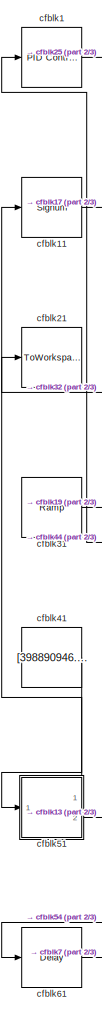
[diagram: root canvas - part 1/3, left side, full height]
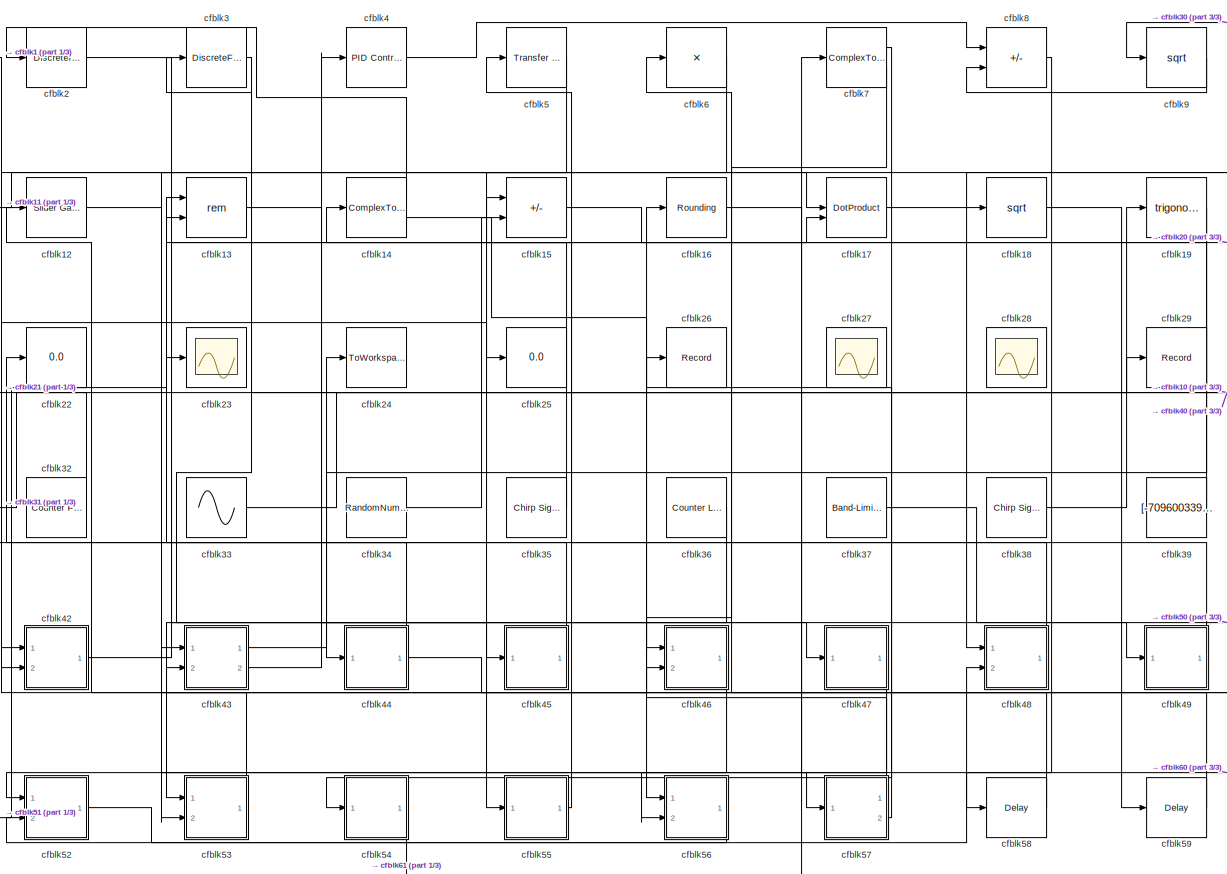
[diagram: root canvas - part 2/3, most of the canvas]
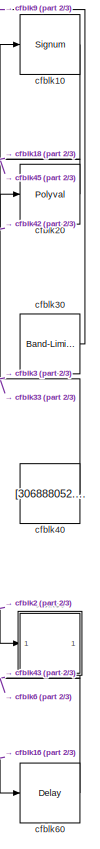
[diagram: root canvas - part 3/3, right side, full height]
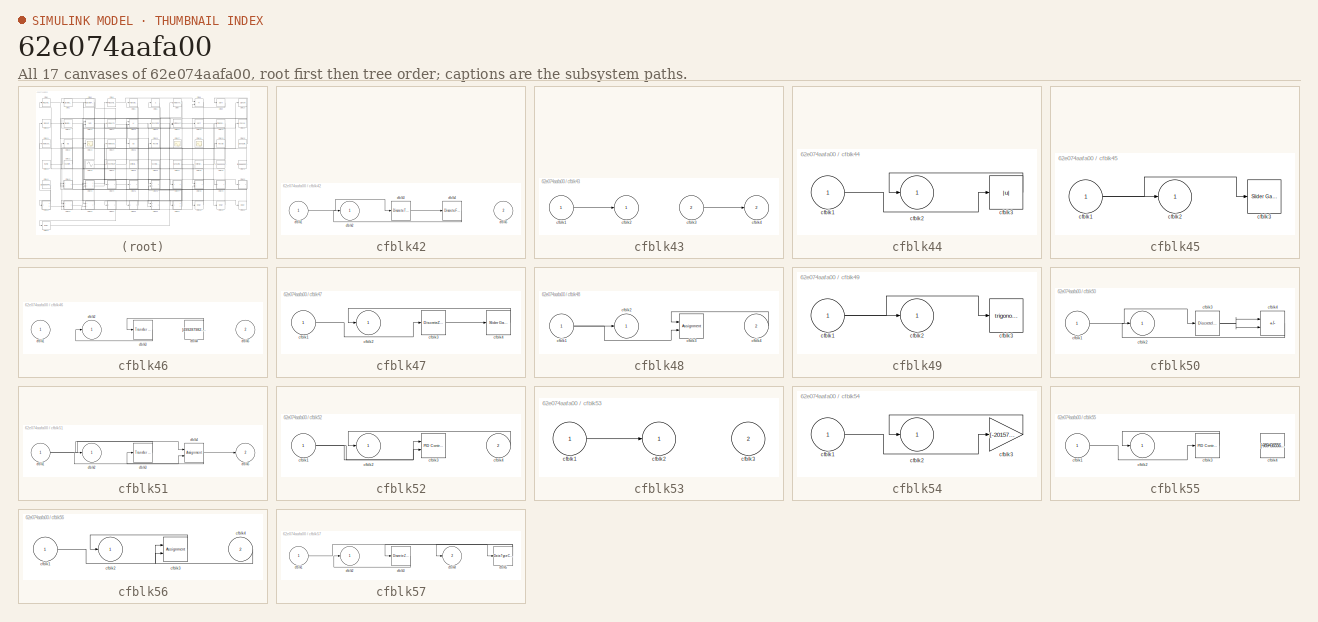
[diagram: thumbnail index - all 17 canvases of the model, root first then tree order]
MODEL slx_62e074aafa00
KIND model
CONFIG AbsTol = auto
CONFIG EnableMultiTasking = off
CONFIG FixedStep = auto
CONFIG MaxStep = auto
CONFIG MinStep = auto
CONFIG RelTol = 1e-3
CONFIG SampleTimeConstraint = Unconstrained
CONFIG SolverName = VariableStepAuto
CONFIG StartTime = 0.0
CONFIG StopTime = 10.0
BLOCK [Reference] cfblk1  REF=slpidlib/PID Controller
  Ports = [1, 1]
  SourceBlock = slpidlib/PID Controller
  SourceProductBaseCode = SL
  SourceType = PID 1dof
BLOCK [Signum] cfblk10
BLOCK [Signum] cfblk11
BLOCK [Reference] cfblk12  REF=simulink/Math
Operations/Slider
Gain
  Ports = [1, 1]
  SourceBlock = simulink/Math\nOperations/Slider\nGain
  SourceProductBaseCode = SL
  SourceType = Slider Gain
BLOCK [Math] cfblk13
  Operator = rem
  Ports = [2, 1]
BLOCK [ComplexToRealImag] cfblk14
  Ports = [1, 2]
BLOCK [Sum] cfblk15
  IconShape = rectangular
  Inputs = +-
  Ports = [2, 1]
BLOCK [Rounding] cfblk16
BLOCK [DotProduct] cfblk17
  OutDataTypeStr = Inherit: Inherit via internal rule
BLOCK [Sqrt] cfblk18
BLOCK [Trigonometry] cfblk19
  Ports = [1, 1]
BLOCK [DiscreteIntegrator] cfblk2
  ICPrevOutput = DiscIntNeverNeededParam
  ICPrevScaledInput = DiscIntNeverNeededParam
  InitialConditionSetting = Auto
  Ports = [1, 1]
BLOCK [Polyval] cfblk20
  Coefs = [ +2.081618890e-019, -1.441693666e-014, +4.719686976e-010, -8.536869453e-006, +1.621573104e-001, -8.087801117e+001 ]
BLOCK [ToWorkspace] cfblk21
  FixptAsFi = on
  MaxDataPoints = inf
  Ports = [1]
  SampleTime = -1
  SaveFormat = Timeseries
  VariableName = totmvkw
BLOCK [Display] cfblk22
  Decimation = 1
  Ports = [1]
BLOCK [Scope] cfblk23
  Floating = off
  NumInputPorts = 1
  Ports = [1]
BLOCK [ToWorkspace] cfblk24
  FixptAsFi = on
  MaxDataPoints = inf
  Ports = [1]
  SampleTime = -1
  SaveFormat = Timeseries
  VariableName = niymegp
BLOCK [Display] cfblk25
  Decimation = 1
  Ports = [1]
BLOCK [Record] cfblk26
  FileSettingsInternal = {"entries":[{"content":{"excelSettings":{"content":{},"type":"Streamout.ExcelSettings"}},"type":"Streamout.FileSettingStorage","uuid":"fce3c9d6-2a43-49ad-97cb-480ba1ea60d3"}],"packageUris":["http://schema.mathworks.com/mf0/streamout_blocks/R2020a"],"version":"1.0"}
  Ports = [1]
  SignalsInternal = {"entries":[{"content":{"signals":[{"content":{"blockPath":["sampleModel285/cfblk26"],"channel":[],"dimensions":[1],"domain":"sampleModel285/cfblk26","lineColor":"#64d413","plots":[1],"port":1,"sid":[""],"signalID":12153,"signalName":"cfblk57:2"},"type":"RecordBlkView.Signal","uuid":"ef2de107-a73d-422a-8208-4576102479dd"}]},"type":"RecordBlkView.InputSignals","uuid":"a1f22ca5-0b50-4f29-a623-51cfa5...<+100ch>
  VisualizationBindings = {"sparklinesplugin":{"info":[{"bindingParametersList":[],"subplotID":1}]}}
BLOCK [Scope] cfblk27
  Floating = on
  NumInputPorts = 1
  Ports = []
BLOCK [Scope] cfblk28
  Floating = on
  NumInputPorts = 1
  Ports = []
BLOCK [Record] cfblk29
  FileSettingsInternal = {"entries":[{"content":{"excelSettings":{"content":{},"type":"Streamout.ExcelSettings"}},"type":"Streamout.FileSettingStorage","uuid":"8842c590-fe67-47e1-96e0-aaea28d16c5b"}],"packageUris":["http://schema.mathworks.com/mf0/streamout_blocks/R2020a"],"version":"1.0"}
  Ports = [1]
  SignalsInternal = {"entries":[{"content":{"signals":[{"content":{"blockPath":["sampleModel285/cfblk29"],"channel":[],"dimensions":[1],"domain":"sampleModel285/cfblk29","lineColor":"#ff13a6","plots":[1],"port":1,"sid":[""],"signalID":12157,"signalName":"cfblk38"},"type":"RecordBlkView.Signal","uuid":"8326beb5-a610-4d92-bc52-2f1e85b59b34"}]},"type":"RecordBlkView.InputSignals","uuid":"b6eabaa5-5595-4eb1-8b25-66d350a1...<+98ch>
  VisualizationBindings = {"sparklinesplugin":{"info":[{"bindingParametersList":[],"subplotID":1}]}}
BLOCK [DiscreteFilter] cfblk3
  InputPortMap = u0
  Ports = [1, 1]
  SampleTime = 1
BLOCK [Reference] cfblk30  REF=simulink/Sources/Band-Limited
White Noise
  Ports = [0, 1]
  SourceBlock = simulink/Sources/Band-Limited\nWhite Noise
  SourceProductBaseCode = SL
  SourceType = Band-Limited White Noise.
BLOCK [Reference] cfblk31  REF=simulink/Sources/Ramp
  Ports = [0, 1]
  SourceBlock = simulink/Sources/Ramp
  SourceProductBaseCode = SL
  SourceType = Ramp
BLOCK [Reference] cfblk32  REF=simulink/Sources/Counter
Free-Running
  Ports = [0, 1]
  SourceBlock = simulink/Sources/Counter\nFree-Running
  SourceProductBaseCode = SL
  SourceType = Counter Free-Running
BLOCK [Sin] cfblk33
  Amplitude = [198590762.873627]
  Bias = [78341371.949165]
  Ports = [0, 1]
  SampleTime = 0
BLOCK [RandomNumber] cfblk34
  Mean = [-67437.100859]
  SampleTime = 0.1
  Seed = [528915036.000000]
  Variance = [32751.440933]
BLOCK [Reference] cfblk35  REF=simulink/Sources/Chirp Signal
  Ports = [0, 1]
  SourceBlock = simulink/Sources/Chirp Signal
  SourceProductBaseCode = SL
  SourceType = chirp
BLOCK [Reference] cfblk36  REF=simulink/Sources/Counter
Limited
  Ports = [0, 1]
  SourceBlock = simulink/Sources/Counter\nLimited
  SourceProductBaseCode = SL
  SourceType = Counter Limited
BLOCK [Reference] cfblk37  REF=simulink/Sources/Band-Limited
White Noise
  Ports = [0, 1]
  SourceBlock = simulink/Sources/Band-Limited\nWhite Noise
  SourceProductBaseCode = SL
  SourceType = Band-Limited White Noise.
BLOCK [Reference] cfblk38  REF=simulink/Sources/Chirp Signal
  Ports = [0, 1]
  SourceBlock = simulink/Sources/Chirp Signal
  SourceProductBaseCode = SL
  SourceType = chirp
BLOCK [Constant] cfblk39
  SampleTime = 1
  Value = [-709600339.373542]
BLOCK [Reference] cfblk4  REF=slpidlib/PID Controller
  Ports = [1, 1]
  SourceBlock = slpidlib/PID Controller
  SourceProductBaseCode = SL
  SourceType = PID 1dof
BLOCK [Constant] cfblk40
  SampleTime = 1
  Value = [306888052.460813]
BLOCK [Constant] cfblk41
  SampleTime = 1
  Value = [398890946.852971]
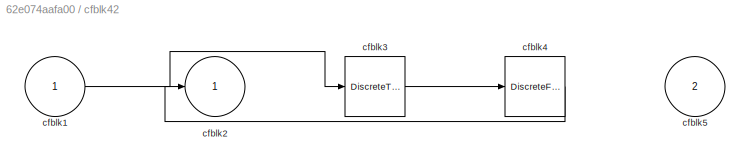
BLOCK [SubSystem] cfblk42
  Ports = [2, 1]
  RequestExecContextInheritance = off
BLOCK [Inport] cfblk42/cfblk1
BLOCK [Outport] cfblk42/cfblk2
BLOCK [DiscreteTransferFcn] cfblk42/cfblk3
  InputPortMap = u0
  Ports = [1, 1]
  SampleTime = 1
BLOCK [DiscreteFilter] cfblk42/cfblk4
  InputPortMap = u0
  Ports = [1, 1]
  SampleTime = 1
BLOCK [Inport] cfblk42/cfblk5
  Port = 2
BLOCK [SubSystem] cfblk43
  Ports = [2, 2]
  RequestExecContextInheritance = off
BLOCK [Inport] cfblk43/cfblk1
BLOCK [Outport] cfblk43/cfblk2
BLOCK [Inport] cfblk43/cfblk3
  Port = 2
BLOCK [Outport] cfblk43/cfblk4
  Port = 2
BLOCK [SubSystem] cfblk44
  Ports = [1, 1]
  RequestExecContextInheritance = off
BLOCK [Inport] cfblk44/cfblk1
BLOCK [Outport] cfblk44/cfblk2
BLOCK [Abs] cfblk44/cfblk3
  SaturateOnIntegerOverflow = off
BLOCK [SubSystem] cfblk45
  Ports = [1, 1]
  RequestExecContextInheritance = off
BLOCK [Inport] cfblk45/cfblk1
BLOCK [Outport] cfblk45/cfblk2
BLOCK [Reference] cfblk45/cfblk3  REF=simulink/Math
Operations/Slider
Gain
  Ports = [1, 1]
  SourceBlock = simulink/Math\nOperations/Slider\nGain
  SourceProductBaseCode = SL
  SourceType = Slider Gain
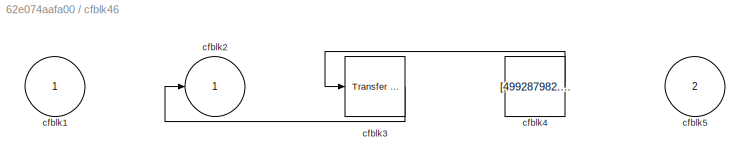
BLOCK [SubSystem] cfblk46
  Ports = [2, 1]
  RequestExecContextInheritance = off
BLOCK [Inport] cfblk46/cfblk1
BLOCK [Outport] cfblk46/cfblk2
BLOCK [Reference] cfblk46/cfblk3  REF=simulink/Discrete/Transfer Fcn
Real Zero
  Ports = [1, 1]
  SourceBlock = simulink/Discrete/Transfer Fcn\nReal Zero
  SourceProductBaseCode = SL
  SourceType = Transfer Fcn Real Zero
BLOCK [Constant] cfblk46/cfblk4
  SampleTime = 1
  Value = [499287982.056257]
BLOCK [Inport] cfblk46/cfblk5
  Port = 2
BLOCK [SubSystem] cfblk47
  Ports = [1, 1]
  RequestExecContextInheritance = off
BLOCK [Inport] cfblk47/cfblk1
BLOCK [Outport] cfblk47/cfblk2
BLOCK [DiscreteZeroPole] cfblk47/cfblk3
  Gain = 1
  Poles = [0 0.5]
BLOCK [Reference] cfblk47/cfblk4  REF=simulink/Math
Operations/Slider
Gain
  Ports = [1, 1]
  SourceBlock = simulink/Math\nOperations/Slider\nGain
  SourceProductBaseCode = SL
  SourceType = Slider Gain
BLOCK [SubSystem] cfblk48
  Ports = [2, 1]
  RequestExecContextInheritance = off
BLOCK [Inport] cfblk48/cfblk1
BLOCK [Outport] cfblk48/cfblk2
BLOCK [Assignment] cfblk48/cfblk3
  DiagnosticForDimensions = Warning
  IndexOptions = Index vector (dialog)
  Indices = 1
  OutputSizes = 1
  Ports = [2, 1]
BLOCK [Inport] cfblk48/cfblk4
  Port = 2
BLOCK [SubSystem] cfblk49
  Ports = [1, 1]
  RequestExecContextInheritance = off
BLOCK [Inport] cfblk49/cfblk1
BLOCK [Outport] cfblk49/cfblk2
BLOCK [Trigonometry] cfblk49/cfblk3
  Ports = [1, 1]
BLOCK [Reference] cfblk5  REF=simulink/Discrete/Transfer Fcn
Real Zero
  Ports = [1, 1]
  SourceBlock = simulink/Discrete/Transfer Fcn\nReal Zero
  SourceProductBaseCode = SL
  SourceType = Transfer Fcn Real Zero
BLOCK [SubSystem] cfblk50
  Ports = [1, 1]
  RequestExecContextInheritance = off
BLOCK [Inport] cfblk50/cfblk1
BLOCK [Outport] cfblk50/cfblk2
BLOCK [DiscreteIntegrator] cfblk50/cfblk3
  ICPrevOutput = DiscIntNeverNeededParam
  ICPrevScaledInput = DiscIntNeverNeededParam
  InitialConditionSetting = Auto
  Ports = [1, 1]
BLOCK [Sum] cfblk50/cfblk4
  IconShape = rectangular
  Inputs = --
  Ports = [2, 1]
BLOCK [SubSystem] cfblk51
  Ports = [1, 2]
  RequestExecContextInheritance = off
BLOCK [Inport] cfblk51/cfblk1
BLOCK [Outport] cfblk51/cfblk2
BLOCK [Reference] cfblk51/cfblk3  REF=simulink/Discrete/Transfer Fcn
Lead or Lag
  Ports = [1, 1]
  SourceBlock = simulink/Discrete/Transfer Fcn\nLead or Lag
  SourceProductBaseCode = SL
  SourceType = Lead or Lag Compensator
BLOCK [Assignment] cfblk51/cfblk4
  DiagnosticForDimensions = Warning
  IndexOptions = Index vector (dialog)
  Indices = 1
  OutputSizes = 1
  Ports = [2, 1]
BLOCK [Outport] cfblk51/cfblk5
  Port = 2
BLOCK [SubSystem] cfblk52
  Ports = [2, 1]
  RequestExecContextInheritance = off
BLOCK [Inport] cfblk52/cfblk1
BLOCK [Outport] cfblk52/cfblk2
BLOCK [Reference] cfblk52/cfblk3  REF=slpidlib/PID Controller (2DOF)
  Ports = [2, 1]
  SourceBlock = slpidlib/PID Controller (2DOF)
  SourceProductBaseCode = SL
  SourceType = PID 2dof
BLOCK [Inport] cfblk52/cfblk4
  Port = 2
BLOCK [SubSystem] cfblk53
  Ports = [2, 1]
  RequestExecContextInheritance = off
BLOCK [Inport] cfblk53/cfblk1
BLOCK [Outport] cfblk53/cfblk2
BLOCK [Inport] cfblk53/cfblk3
  Port = 2
BLOCK [SubSystem] cfblk54
  Ports = [1, 1]
  RequestExecContextInheritance = off
BLOCK [Inport] cfblk54/cfblk1
BLOCK [Outport] cfblk54/cfblk2
BLOCK [Gain] cfblk54/cfblk3
  Gain = [-201575047.570296]
BLOCK [SubSystem] cfblk55
  Ports = [1, 1]
  RequestExecContextInheritance = off
BLOCK [Inport] cfblk55/cfblk1
BLOCK [Outport] cfblk55/cfblk2
BLOCK [Reference] cfblk55/cfblk3  REF=slpidlib/PID Controller
  Ports = [1, 1]
  SourceBlock = slpidlib/PID Controller
  SourceProductBaseCode = SL
  SourceType = PID 1dof
BLOCK [Constant] cfblk55/cfblk4
  SampleTime = 1
  Value = [-989436556.663402]
BLOCK [SubSystem] cfblk56
  Ports = [2, 1]
  RequestExecContextInheritance = off
BLOCK [Inport] cfblk56/cfblk1
BLOCK [Outport] cfblk56/cfblk2
BLOCK [Assignment] cfblk56/cfblk3
  DiagnosticForDimensions = Warning
  IndexOptions = Index vector (dialog)
  Indices = 1
  OutputSizes = 1
  Ports = [2, 1]
BLOCK [Inport] cfblk56/cfblk4
  Port = 2
BLOCK [SubSystem] cfblk57
  Ports = [1, 2]
  RequestExecContextInheritance = off
BLOCK [Inport] cfblk57/cfblk1
BLOCK [Outport] cfblk57/cfblk2
BLOCK [DiscreteZeroPole] cfblk57/cfblk3
  Gain = 1
  Poles = [0 0.5]
BLOCK [Outport] cfblk57/cfblk4
  Port = 2
BLOCK [DataTypeConversion] cfblk57/cfblk5
  RndMeth = Floor
  SaturateOnIntegerOverflow = off
BLOCK [Delay] cfblk58
  InputPortMap = u0
  Ports = [1, 1]
  SampleTime = 1
BLOCK [Delay] cfblk59
  InputPortMap = u0
  Ports = [1, 1]
  SampleTime = 1
BLOCK [Product] cfblk6
  Inputs = *
  Ports = [1, 1]
BLOCK [Delay] cfblk60
  InputPortMap = u0
  Ports = [1, 1]
  SampleTime = 1
BLOCK [Delay] cfblk61
  InputPortMap = u0
  Ports = [1, 1]
  SampleTime = 1
BLOCK [ComplexToMagnitudeAngle] cfblk7
  Ports = [1, 2]
BLOCK [Sum] cfblk8
  IconShape = rectangular
  Inputs = +-
  Ports = [2, 1]
BLOCK [Sqrt] cfblk9
LINE cfblk10:1 -> cfblk45:1
LINE cfblk11:1 -> cfblk17:1
LINE cfblk12:1 -> cfblk57:1
LINE cfblk13:1 -> cfblk47:1
LINE cfblk14:1 -> cfblk2:1
LINE cfblk14:2 -> cfblk56:1
LINE cfblk15:1 -> cfblk17:2
LINE cfblk16:1 -> cfblk60:1
LINE cfblk17:1 -> cfblk48:1
LINE cfblk18:1 -> cfblk59:1
LINE cfblk19:1 -> cfblk44:1
LINE cfblk1:1 -> cfblk25:1
LINE cfblk20:1 -> cfblk18:1
LINE cfblk2:1 -> cfblk50:1
LINE cfblk30:1 -> cfblk9:1
LINE cfblk31:1 -> cfblk19:1
LINE cfblk32:1 -> cfblk21:1
LINE cfblk33:1 -> cfblk10:1
LINE cfblk34:1 -> cfblk15:2
LINE cfblk35:1 -> cfblk13:1
LINE cfblk36:1 -> cfblk53:1
LINE cfblk37:1 -> cfblk49:1
LINE cfblk38:1 -> cfblk29:1
LINE cfblk39:1 -> cfblk14:1
LINE cfblk3:1 -> cfblk55:1
LINE cfblk40:1 -> cfblk3:1
LINE cfblk41:1 -> cfblk51:1
LINE cfblk42/cfblk1:1 -> cfblk42/cfblk3:1
LINE cfblk42/cfblk3:1 -> cfblk42/cfblk4:1
LINE cfblk42/cfblk4:1 -> cfblk42/cfblk2:1
LINE cfblk42:1 -> cfblk20:1
LINE cfblk43/cfblk1:1 -> cfblk43/cfblk2:1
LINE cfblk43/cfblk3:1 -> cfblk43/cfblk4:1
LINE cfblk43:1 -> cfblk24:1
LINE cfblk43:2 -> cfblk4:1
LINE cfblk44/cfblk1:1 -> cfblk44/cfblk3:1
LINE cfblk44/cfblk3:1 -> cfblk44/cfblk2:1
NET cfblk44:1 -> cfblk1:1, cfblk46:2
NET cfblk45/cfblk1:1 -> cfblk45/cfblk2:1, cfblk45/cfblk3:1
LINE cfblk45:1 -> cfblk22:1
LINE cfblk46/cfblk3:1 -> cfblk46/cfblk2:1
LINE cfblk46/cfblk4:1 -> cfblk46/cfblk3:1
LINE cfblk46:1 -> cfblk52:1
LINE cfblk47/cfblk1:1 -> cfblk47/cfblk3:1
LINE cfblk47/cfblk3:1 -> cfblk47/cfblk4:1
LINE cfblk47/cfblk4:1 -> cfblk47/cfblk2:1
LINE cfblk47:1 -> cfblk56:2
NET cfblk48/cfblk1:1 -> cfblk48/cfblk2:1, cfblk48/cfblk3:2
LINE cfblk48/cfblk4:1 -> cfblk48/cfblk3:1
LINE cfblk48:1 -> cfblk23:1
NET cfblk49/cfblk1:1 -> cfblk49/cfblk2:1, cfblk49/cfblk3:1
LINE cfblk49:1 -> cfblk5:1
LINE cfblk4:1 -> cfblk8:1
LINE cfblk50/cfblk1:1 -> cfblk50/cfblk3:1
NET cfblk50/cfblk3:1 -> cfblk50/cfblk4:1, cfblk50/cfblk4:2
LINE cfblk50/cfblk4:1 -> cfblk50/cfblk2:1
LINE cfblk50:1 -> cfblk43:2
NET cfblk51/cfblk1:1 -> cfblk51/cfblk4:1, cfblk51/cfblk4:2
LINE cfblk51/cfblk3:1 -> cfblk51/cfblk2:1
NET cfblk51/cfblk4:1 -> cfblk51/cfblk3:1, cfblk51/cfblk5:1
LINE cfblk51:1 -> cfblk11:1
LINE cfblk51:2 -> cfblk13:2
NET cfblk52/cfblk1:1 -> cfblk52/cfblk3:1, cfblk52/cfblk3:2
LINE cfblk52/cfblk4:1 -> cfblk52/cfblk2:1
LINE cfblk52:1 -> cfblk48:2
LINE cfblk53/cfblk1:1 -> cfblk53/cfblk2:1
LINE cfblk53:1 -> cfblk12:1
LINE cfblk54/cfblk1:1 -> cfblk54/cfblk3:1
LINE cfblk54/cfblk3:1 -> cfblk54/cfblk2:1
LINE cfblk54:1 -> cfblk61:1
LINE cfblk55/cfblk1:1 -> cfblk55/cfblk3:1
LINE cfblk55/cfblk3:1 -> cfblk55/cfblk2:1
LINE cfblk55:1 -> cfblk15:1
LINE cfblk56/cfblk1:1 -> cfblk56/cfblk3:1
LINE cfblk56/cfblk3:1 -> cfblk56/cfblk2:1
LINE cfblk56/cfblk4:1 -> cfblk56/cfblk3:2
LINE cfblk56:1 -> cfblk52:2
LINE cfblk57/cfblk1:1 -> cfblk57/cfblk5:1
LINE cfblk57/cfblk3:1 -> cfblk57/cfblk2:1
NET cfblk57/cfblk5:1 -> cfblk57/cfblk3:1, cfblk57/cfblk4:1
LINE cfblk57:1 -> cfblk16:1
LINE cfblk57:2 -> cfblk26:1
LINE cfblk58:1 -> cfblk43:1
LINE cfblk59:1 -> cfblk42:1
LINE cfblk5:1 -> cfblk42:2
LINE cfblk60:1 -> cfblk6:1
LINE cfblk61:1 -> cfblk7:1
LINE cfblk6:1 -> cfblk53:2
LINE cfblk7:1 -> cfblk54:1
LINE cfblk7:2 -> cfblk46:1
LINE cfblk8:1 -> cfblk58:1
LINE cfblk9:1 -> cfblk8:2
note: NET lines group one-source signal fan-out (src -> all destinations, sorted); 1:1 wires keep LINE
